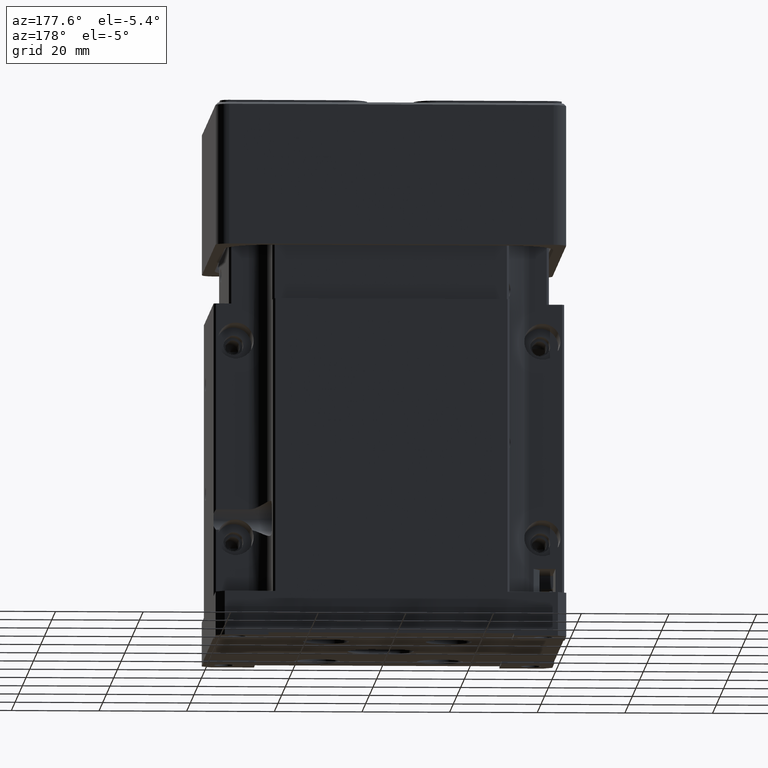
[diagram: clean part render]
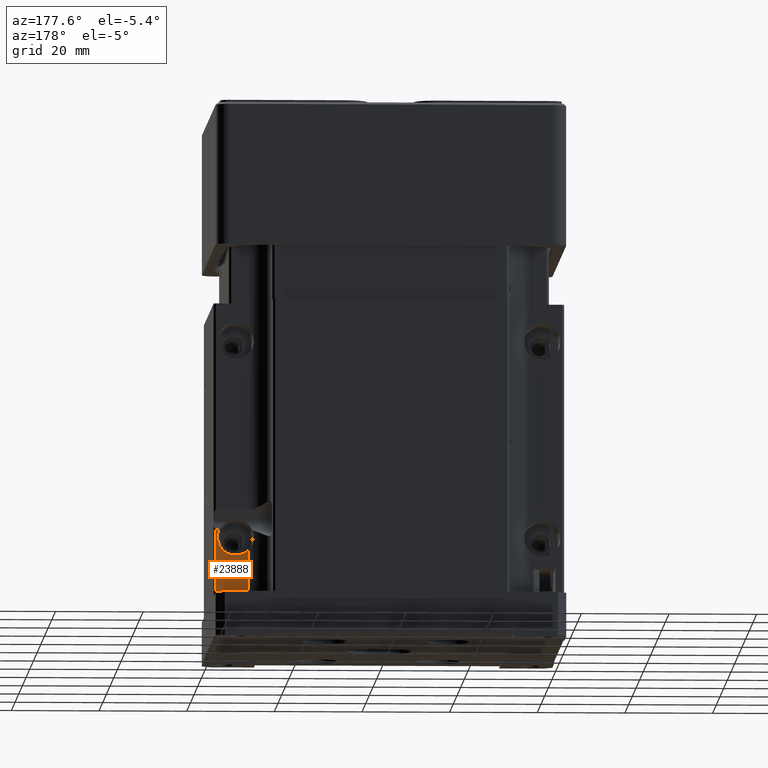
[diagram: same view with one face highlighted and labeled with its STEP entity id]
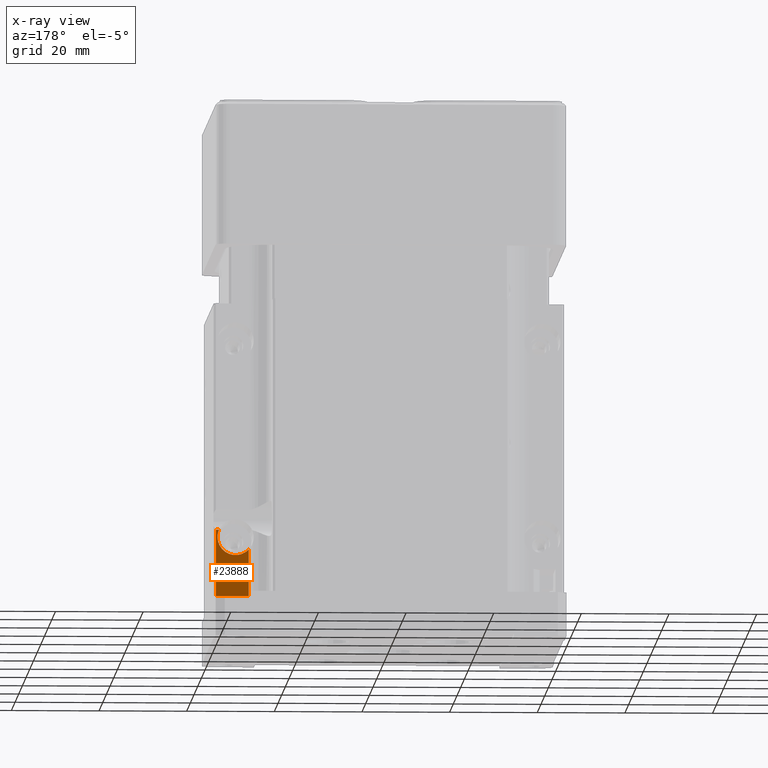
[diagram: x-ray of the same camera — body ghosted, the highlighted face saturated]
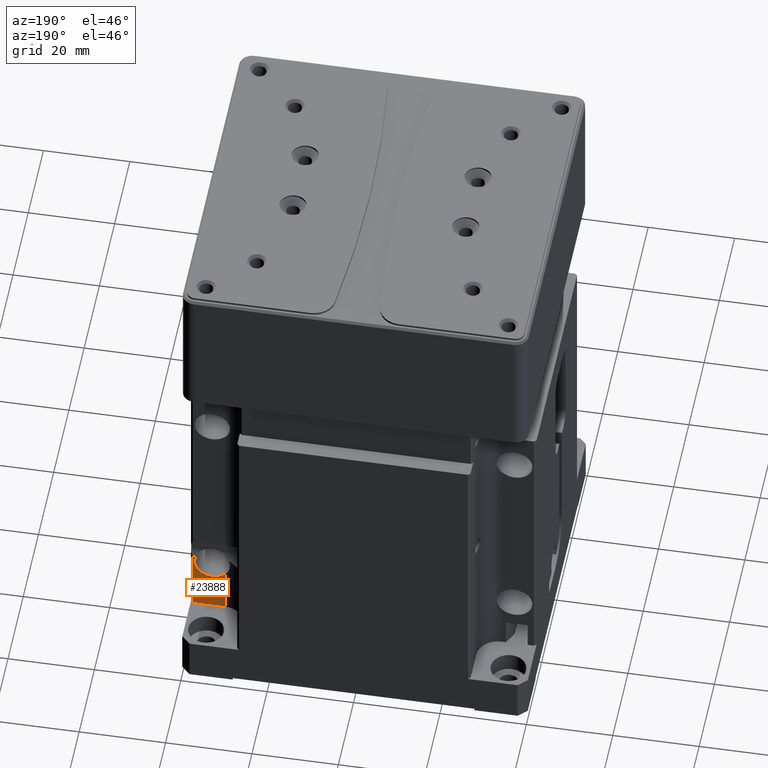
[diagram: same view with one face highlighted and labeled with its STEP entity id]
A machine part, auxiliary view. The second image highlights one B-rep face of the part: STEP entity #23888.
The next image is the same camera in x-ray: the body ghosted, the highlighted face saturated — about 0% of this face is hidden behind the body in this view.
A second angle (auxiliary view) of the same face is appended — the face is thin or edge-on in the first view.
In plain terms, the highlighted planar face has unit normal (-0, 1, 0).
Its self-contained STEP definition (entity closure, byte-faithful):
#473 = CARTESIAN_POINT ( 'NONE',  ( 32.00000000000000000, 27.00000000000000000, 10.66881208676999826 ) ) ;
#1646 = VECTOR ( 'NONE', #12656, 1000.000000000000000 ) ;
#1778 = VECTOR ( 'NONE', #30583, 1000.000000000000000 ) ;
#2533 = CARTESIAN_POINT ( 'NONE',  ( 38.77264934843000788, 27.00000000000000000, 15.16815523673000143 ) ) ;
#3849 = LINE ( 'NONE', #27450, #1646 ) ;
#4233 = LINE ( 'NONE', #4792, #14046 ) ;
#4792 = CARTESIAN_POINT ( 'NONE',  ( 32.00000000000000000, 27.00000000000000000, 0.000000000000000000 ) ) ;
#6438 = VECTOR ( 'NONE', #28050, 1000.000000000000000 ) ;
#8214 = ORIENTED_EDGE ( 'NONE', *, *, #12203, .T. ) ;
#8283 = CIRCLE ( 'NONE', #15035, 4.124999999999999112 ) ;
#8652 = CARTESIAN_POINT ( 'NONE',  ( 39.12500000000000000, 27.00000000000000000, 13.50000000000000000 ) ) ;
#10038 = LINE ( 'NONE', #27890, #1778 ) ;
#10713 = CARTESIAN_POINT ( 'NONE',  ( 35.00000000000000000, 27.00000000000000000, 13.50000000000000000 ) ) ;
#11720 = CARTESIAN_POINT ( 'NONE',  ( 40.00000000000000000, 27.00000000000000000, 92.50000000000000000 ) ) ;
#12203 = EDGE_CURVE ( 'NONE', #29316, #22128, #30567, .T. ) ;
#12656 = DIRECTION ( 'NONE',  ( 0.000000000000000000, 0.000000000000000000, -1.000000000000000000 ) ) ;
#12674 = EDGE_CURVE ( 'NONE', #30332, #13624, #8283, .T. ) ;
#13084 = CARTESIAN_POINT ( 'NONE',  ( 39.50000000000000000, 27.00000000000000000, 0.000000000000000000 ) ) ;
#13426 = DIRECTION ( 'NONE',  ( 0.000000000000000000, 0.000000000000000000, 1.000000000000000000 ) ) ;
#13624 = VERTEX_POINT ( 'NONE', #8652 ) ;
#13980 = CARTESIAN_POINT ( 'NONE',  ( 32.00000000000000000, 27.00000000000000000, 0.000000000000000000 ) ) ;
#14046 = VECTOR ( 'NONE', #13426, 1000.000000000000000 ) ;
#15035 = AXIS2_PLACEMENT_3D ( 'NONE', #10713, #22412, #34119 ) ;
#17290 = DIRECTION ( 'NONE',  ( -0.000000000000000000, 1.000000000000000000, 0.000000000000000000 ) ) ;
#17771 = CIRCLE ( 'NONE', #27588, 4.125000000000003553 ) ;
#17979 = EDGE_CURVE ( 'NONE', #31117, #29316, #3849, .T. ) ;
#19153 = DIRECTION ( 'NONE',  ( 0.000000000000000000, 1.000000000000000000, 0.000000000000000000 ) ) ;
#20537 = FACE_OUTER_BOUND ( 'NONE', #20710, .T. ) ;
#20710 = EDGE_LOOP ( 'NONE', ( #27230, #33467, #34571, #8214, #29227, #21903 ) ) ;
#21659 = EDGE_CURVE ( 'NONE', #30332, #31117, #10038, .T. ) ;
#21882 = CARTESIAN_POINT ( 'NONE',  ( 39.50000000000000000, 27.00000000000000000, 0.000000000000000000 ) ) ;
#21903 = ORIENTED_EDGE ( 'NONE', *, *, #37965, .F. ) ;
#22128 = VERTEX_POINT ( 'NONE', #13980 ) ;
#22412 = DIRECTION ( 'NONE',  ( 0.000000000000000000, 1.000000000000000000, 0.000000000000000000 ) ) ;
#23888 = ADVANCED_FACE ( 'NONE', ( #20537 ), #34559, .T. ) ;
#26734 = VERTEX_POINT ( 'NONE', #473 ) ;
#27230 = ORIENTED_EDGE ( 'NONE', *, *, #12674, .F. ) ;
#27450 = CARTESIAN_POINT ( 'NONE',  ( 39.50000000000000000, 27.00000000000000000, 15.16815523673000143 ) ) ;
#27588 = AXIS2_PLACEMENT_3D ( 'NONE', #27810, #19153, #33195 ) ;
#27810 = CARTESIAN_POINT ( 'NONE',  ( 35.00000000000000000, 27.00000000000000000, 13.50000000000000000 ) ) ;
#27890 = CARTESIAN_POINT ( 'NONE',  ( 38.77264934843000788, 27.00000000000000000, 15.16815523673000143 ) ) ;
#28050 = DIRECTION ( 'NONE',  ( -1.000000000000000000, 0.000000000000000000, 0.000000000000000000 ) ) ;
#29227 = ORIENTED_EDGE ( 'NONE', *, *, #37562, .T. ) ;
#29316 = VERTEX_POINT ( 'NONE', #21882 ) ;
#30332 = VERTEX_POINT ( 'NONE', #2533 ) ;
#30567 = LINE ( 'NONE', #13084, #6438 ) ;
#30583 = DIRECTION ( 'NONE',  ( 1.000000000000000000, 0.000000000000000000, -7.326686937953000792E-14 ) ) ;
#31117 = VERTEX_POINT ( 'NONE', #32301 ) ;
#32301 = CARTESIAN_POINT ( 'NONE',  ( 39.50000000000000000, 27.00000000000000000, 15.16815523673000143 ) ) ;
#32468 = DIRECTION ( 'NONE',  ( 1.000000000000000000, 0.000000000000000000, 0.000000000000000000 ) ) ;
#33195 = DIRECTION ( 'NONE',  ( 1.000000000000000000, 0.000000000000000000, 0.000000000000000000 ) ) ;
#33467 = ORIENTED_EDGE ( 'NONE', *, *, #21659, .T. ) ;
#34119 = DIRECTION ( 'NONE',  ( 0.9145816602244192239, 0.000000000000000000, 0.4044012695098084809 ) ) ;
#34349 = AXIS2_PLACEMENT_3D ( 'NONE', #11720, #17290, #32468 ) ;
#34559 = PLANE ( 'NONE',  #34349 ) ;
#34571 = ORIENTED_EDGE ( 'NONE', *, *, #17979, .T. ) ;
#37562 = EDGE_CURVE ( 'NONE', #22128, #26734, #4233, .T. ) ;
#37965 = EDGE_CURVE ( 'NONE', #13624, #26734, #17771, .T. ) ;